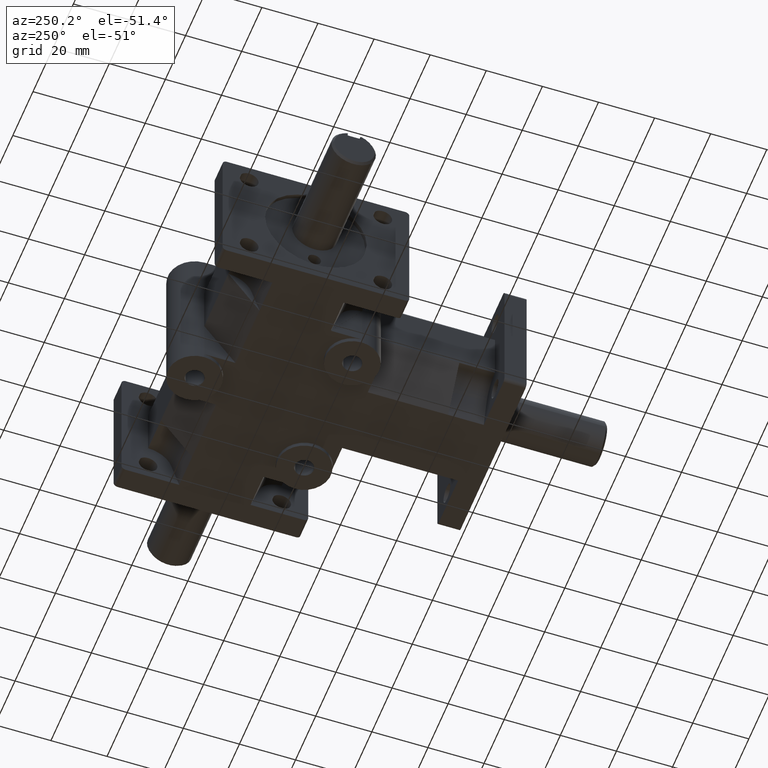
[diagram: clean part render]
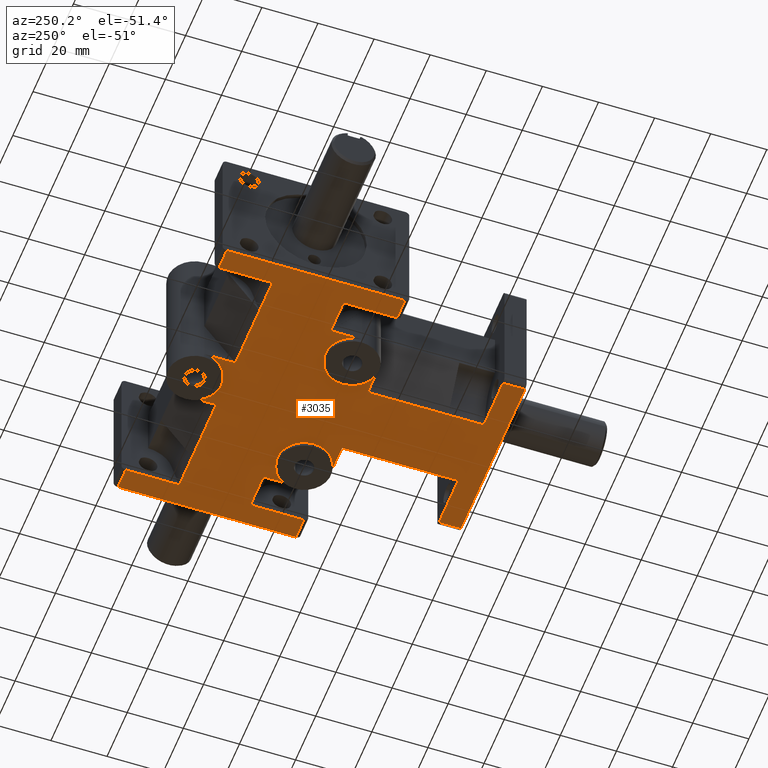
[diagram: same view with one face highlighted and labeled with its STEP entity id]
A machine part, auxiliary view. The second image highlights one B-rep face of the part: STEP entity #3035.
In plain terms, the highlighted planar face has unit normal (0, 0, 1).
Its self-contained STEP definition (entity closure, byte-faithful):
#140=PLANE('',#3334);
#305=FACE_OUTER_BOUND('',#498,.T.);
#498=EDGE_LOOP('',(#2562,#2563,#2564,#2565,#2566,#2567,#2568,#2569,#2570,
#2571,#2572,#2573,#2574,#2575,#2576,#2577,#2578,#2579,#2580,#2581,#2582,
#2583,#2584,#2585,#2586,#2587,#2588,#2589,#2590,#2591,#2592,#2593,#2594,
#2595,#2596,#2597,#2598));
#573=LINE('',#4376,#869);
#576=LINE('',#4388,#872);
#579=LINE('',#4403,#875);
#582=LINE('',#4415,#878);
#587=LINE('',#4439,#883);
#590=LINE('',#4451,#886);
#594=LINE('',#4464,#890);
#609=LINE('',#4504,#905);
#611=LINE('',#4512,#907);
#625=LINE('',#4550,#921);
#627=LINE('',#4558,#923);
#641=LINE('',#4596,#937);
#666=LINE('',#4660,#962);
#667=LINE('',#4663,#963);
#679=LINE('',#4690,#975);
#682=LINE('',#4696,#978);
#692=LINE('',#4720,#988);
#693=LINE('',#4723,#989);
#705=LINE('',#4750,#1001);
#708=LINE('',#4756,#1004);
#718=LINE('',#4780,#1014);
#719=LINE('',#4783,#1015);
#738=LINE('',#4826,#1034);
#788=LINE('',#5019,#1084);
#789=LINE('',#5021,#1085);
#790=LINE('',#5026,#1086);
#791=LINE('',#5027,#1087);
#792=LINE('',#5029,#1088);
#793=LINE('',#5031,#1089);
#794=LINE('',#5034,#1090);
#795=LINE('',#5035,#1091);
#796=LINE('',#5037,#1092);
#797=LINE('',#5040,#1093);
#869=VECTOR('',#3498,1.);
#872=VECTOR('',#3509,1.);
#875=VECTOR('',#3522,1.);
#878=VECTOR('',#3533,1.);
#883=VECTOR('',#3554,1.);
#886=VECTOR('',#3565,1.);
#890=VECTOR('',#3577,1.);
#905=VECTOR('',#3608,1.);
#907=VECTOR('',#3616,1.);
#921=VECTOR('',#3644,1.);
#923=VECTOR('',#3652,1.);
#937=VECTOR('',#3680,1.);
#962=VECTOR('',#3743,1.);
#963=VECTOR('',#3746,1.);
#975=VECTOR('',#3774,1.);
#978=VECTOR('',#3779,1.);
#988=VECTOR('',#3805,1.);
#989=VECTOR('',#3808,1.);
#1001=VECTOR('',#3836,1.);
#1004=VECTOR('',#3841,1.);
#1014=VECTOR('',#3867,1.);
#1015=VECTOR('',#3870,1.);
#1034=VECTOR('',#3913,1.);
#1084=VECTOR('',#4107,1.);
#1085=VECTOR('',#4108,1.);
#1086=VECTOR('',#4113,1.);
#1087=VECTOR('',#4114,1.);
#1088=VECTOR('',#4115,1.);
#1089=VECTOR('',#4116,1.);
#1090=VECTOR('',#4119,1.);
#1091=VECTOR('',#4120,1.);
#1092=VECTOR('',#4121,1.);
#1093=VECTOR('',#4124,1.);
#1268=CIRCLE('',#3335,0.375);
#1269=CIRCLE('',#3336,0.375);
#1270=CIRCLE('',#3337,0.375);
#1271=CIRCLE('',#3338,0.375);
#1311=VERTEX_POINT('',#4373);
#1312=VERTEX_POINT('',#4375);
#1314=VERTEX_POINT('',#4381);
#1317=VERTEX_POINT('',#4386);
#1323=VERTEX_POINT('',#4400);
#1324=VERTEX_POINT('',#4402);
#1326=VERTEX_POINT('',#4408);
#1329=VERTEX_POINT('',#4413);
#1339=VERTEX_POINT('',#4436);
#1340=VERTEX_POINT('',#4438);
#1342=VERTEX_POINT('',#4444);
#1345=VERTEX_POINT('',#4449);
#1350=VERTEX_POINT('',#4463);
#1367=VERTEX_POINT('',#4502);
#1370=VERTEX_POINT('',#4511);
#1387=VERTEX_POINT('',#4548);
#1390=VERTEX_POINT('',#4557);
#1407=VERTEX_POINT('',#4594);
#1426=VERTEX_POINT('',#4651);
#1428=VERTEX_POINT('',#4662);
#1433=VERTEX_POINT('',#4680);
#1437=VERTEX_POINT('',#4694);
#1442=VERTEX_POINT('',#4711);
#1444=VERTEX_POINT('',#4722);
#1449=VERTEX_POINT('',#4740);
#1453=VERTEX_POINT('',#4754);
#1458=VERTEX_POINT('',#4771);
#1460=VERTEX_POINT('',#4782);
#1472=VERTEX_POINT('',#4824);
#1526=VERTEX_POINT('',#5020);
#1527=VERTEX_POINT('',#5022);
#1528=VERTEX_POINT('',#5024);
#1529=VERTEX_POINT('',#5028);
#1530=VERTEX_POINT('',#5030);
#1531=VERTEX_POINT('',#5032);
#1532=VERTEX_POINT('',#5036);
#1533=VERTEX_POINT('',#5038);
#1598=EDGE_CURVE('',#1311,#1312,#573,.T.);
#1604=EDGE_CURVE('',#1317,#1314,#576,.T.);
#1610=EDGE_CURVE('',#1323,#1324,#579,.T.);
#1616=EDGE_CURVE('',#1329,#1326,#582,.T.);
#1626=EDGE_CURVE('',#1339,#1340,#587,.T.);
#1632=EDGE_CURVE('',#1345,#1342,#590,.T.);
#1638=EDGE_CURVE('',#1312,#1350,#594,.T.);
#1659=EDGE_CURVE('',#1367,#1317,#609,.T.);
#1663=EDGE_CURVE('',#1324,#1370,#611,.T.);
#1683=EDGE_CURVE('',#1387,#1329,#625,.T.);
#1687=EDGE_CURVE('',#1340,#1390,#627,.T.);
#1707=EDGE_CURVE('',#1407,#1345,#641,.T.);
#1738=EDGE_CURVE('',#1390,#1426,#666,.T.);
#1739=EDGE_CURVE('',#1426,#1428,#667,.T.);
#1753=EDGE_CURVE('',#1433,#1407,#679,.T.);
#1756=EDGE_CURVE('',#1437,#1433,#682,.T.);
#1768=EDGE_CURVE('',#1350,#1442,#692,.T.);
#1769=EDGE_CURVE('',#1442,#1444,#693,.T.);
#1783=EDGE_CURVE('',#1449,#1367,#705,.T.);
#1786=EDGE_CURVE('',#1453,#1449,#708,.T.);
#1798=EDGE_CURVE('',#1370,#1458,#718,.T.);
#1799=EDGE_CURVE('',#1458,#1460,#719,.T.);
#1821=EDGE_CURVE('',#1472,#1387,#738,.T.);
#1909=EDGE_CURVE('',#1314,#1311,#788,.T.);
#1910=EDGE_CURVE('',#1526,#1453,#789,.T.);
#1911=EDGE_CURVE('',#1526,#1527,#1268,.T.);
#1912=EDGE_CURVE('',#1527,#1528,#1269,.T.);
#1913=EDGE_CURVE('',#1460,#1528,#790,.T.);
#1914=EDGE_CURVE('',#1326,#1323,#791,.T.);
#1915=EDGE_CURVE('',#1529,#1472,#792,.T.);
#1916=EDGE_CURVE('',#1530,#1529,#793,.T.);
#1917=EDGE_CURVE('',#1530,#1531,#1270,.T.);
#1918=EDGE_CURVE('',#1428,#1531,#794,.T.);
#1919=EDGE_CURVE('',#1342,#1339,#795,.T.);
#1920=EDGE_CURVE('',#1532,#1437,#796,.T.);
#1921=EDGE_CURVE('',#1532,#1533,#1271,.T.);
#1922=EDGE_CURVE('',#1444,#1533,#797,.T.);
#2562=ORIENTED_EDGE('',*,*,#1598,.F.);
#2563=ORIENTED_EDGE('',*,*,#1909,.F.);
#2564=ORIENTED_EDGE('',*,*,#1604,.F.);
#2565=ORIENTED_EDGE('',*,*,#1659,.F.);
#2566=ORIENTED_EDGE('',*,*,#1783,.F.);
#2567=ORIENTED_EDGE('',*,*,#1786,.F.);
#2568=ORIENTED_EDGE('',*,*,#1910,.F.);
#2569=ORIENTED_EDGE('',*,*,#1911,.T.);
#2570=ORIENTED_EDGE('',*,*,#1912,.T.);
#2571=ORIENTED_EDGE('',*,*,#1913,.F.);
#2572=ORIENTED_EDGE('',*,*,#1799,.F.);
#2573=ORIENTED_EDGE('',*,*,#1798,.F.);
#2574=ORIENTED_EDGE('',*,*,#1663,.F.);
#2575=ORIENTED_EDGE('',*,*,#1610,.F.);
#2576=ORIENTED_EDGE('',*,*,#1914,.F.);
#2577=ORIENTED_EDGE('',*,*,#1616,.F.);
#2578=ORIENTED_EDGE('',*,*,#1683,.F.);
#2579=ORIENTED_EDGE('',*,*,#1821,.F.);
#2580=ORIENTED_EDGE('',*,*,#1915,.F.);
#2581=ORIENTED_EDGE('',*,*,#1916,.F.);
#2582=ORIENTED_EDGE('',*,*,#1917,.T.);
#2583=ORIENTED_EDGE('',*,*,#1918,.F.);
#2584=ORIENTED_EDGE('',*,*,#1739,.F.);
#2585=ORIENTED_EDGE('',*,*,#1738,.F.);
#2586=ORIENTED_EDGE('',*,*,#1687,.F.);
#2587=ORIENTED_EDGE('',*,*,#1626,.F.);
#2588=ORIENTED_EDGE('',*,*,#1919,.F.);
#2589=ORIENTED_EDGE('',*,*,#1632,.F.);
#2590=ORIENTED_EDGE('',*,*,#1707,.F.);
#2591=ORIENTED_EDGE('',*,*,#1753,.F.);
#2592=ORIENTED_EDGE('',*,*,#1756,.F.);
#2593=ORIENTED_EDGE('',*,*,#1920,.F.);
#2594=ORIENTED_EDGE('',*,*,#1921,.T.);
#2595=ORIENTED_EDGE('',*,*,#1922,.F.);
#2596=ORIENTED_EDGE('',*,*,#1769,.F.);
#2597=ORIENTED_EDGE('',*,*,#1768,.F.);
#2598=ORIENTED_EDGE('',*,*,#1638,.F.);
#3035=ADVANCED_FACE('',(#305),#140,.F.);
#3334=AXIS2_PLACEMENT_3D('',#5018,#4105,#4106);
#3335=AXIS2_PLACEMENT_3D('',#5023,#4109,#4110);
#3336=AXIS2_PLACEMENT_3D('',#5025,#4111,#4112);
#3337=AXIS2_PLACEMENT_3D('',#5033,#4117,#4118);
#3338=AXIS2_PLACEMENT_3D('',#5039,#4122,#4123);
#3498=DIRECTION('',(-1.,0.,0.));
#3509=DIRECTION('',(1.,0.,0.));
#3522=DIRECTION('',(0.,1.,0.));
#3533=DIRECTION('',(0.,-1.,0.));
#3554=DIRECTION('',(1.,0.,0.));
#3565=DIRECTION('',(-1.,0.,0.));
#3577=DIRECTION('',(0.,-1.,0.));
#3608=DIRECTION('',(0.,-1.,0.));
#3616=DIRECTION('',(-1.,0.,0.));
#3644=DIRECTION('',(-1.,0.,0.));
#3652=DIRECTION('',(0.,1.,0.));
#3680=DIRECTION('',(0.,1.,0.));
#3743=DIRECTION('',(1.,0.,0.));
#3746=DIRECTION('',(1.,0.,0.));
#3774=DIRECTION('',(-1.,0.,0.));
#3779=DIRECTION('',(-1.,0.,0.));
#3805=DIRECTION('',(-1.,0.,0.));
#3808=DIRECTION('',(-1.,0.,0.));
#3836=DIRECTION('',(1.,0.,0.));
#3841=DIRECTION('',(1.,0.,0.));
#3867=DIRECTION('',(0.,1.,0.));
#3870=DIRECTION('',(0.,1.,0.));
#3913=DIRECTION('',(0.,-1.,0.));
#4105=DIRECTION('center_axis',(0.,0.,1.));
#4106=DIRECTION('ref_axis',(-1.,0.,0.));
#4107=DIRECTION('',(0.,1.,0.));
#4108=DIRECTION('',(0.,1.,0.));
#4109=DIRECTION('center_axis',(0.,0.,1.));
#4110=DIRECTION('ref_axis',(1.,0.,0.));
#4111=DIRECTION('center_axis',(0.,0.,1.));
#4112=DIRECTION('ref_axis',(1.,0.,0.));
#4113=DIRECTION('',(1.,0.,0.));
#4114=DIRECTION('',(1.,0.,0.));
#4115=DIRECTION('',(0.,-1.,0.));
#4116=DIRECTION('',(1.,0.,0.));
#4117=DIRECTION('center_axis',(0.,0.,1.));
#4118=DIRECTION('ref_axis',(1.,0.,0.));
#4119=DIRECTION('',(0.,-1.,0.));
#4120=DIRECTION('',(0.,-1.,0.));
#4121=DIRECTION('',(0.,-1.,0.));
#4122=DIRECTION('center_axis',(0.,0.,1.));
#4123=DIRECTION('ref_axis',(1.,0.,0.));
#4124=DIRECTION('',(0.,1.,0.));
#4373=CARTESIAN_POINT('',(2.125,4.5,-0.9375));
#4375=CARTESIAN_POINT('',(1.815,4.5,-0.9375));
#4376=CARTESIAN_POINT('',(1.0625,4.5,-0.9375));
#4381=CARTESIAN_POINT('',(2.125,2.,-0.9375));
#4386=CARTESIAN_POINT('',(1.815,2.,-0.9375));
#4388=CARTESIAN_POINT('',(0.9075,2.,-0.9375));
#4400=CARTESIAN_POINT('',(1.25,0.,-0.9375));
#4402=CARTESIAN_POINT('',(1.25,0.31,-0.9375));
#4403=CARTESIAN_POINT('',(1.25,1.20989507691196,-0.9375));
#4408=CARTESIAN_POINT('',(-1.25,0.,-0.9375));
#4413=CARTESIAN_POINT('',(-1.25,0.31,-0.9375));
#4415=CARTESIAN_POINT('',(-1.25,1.36489507691196,-0.9375));
#4436=CARTESIAN_POINT('',(-2.125,2.,-0.9375));
#4438=CARTESIAN_POINT('',(-1.815,2.,-0.9375));
#4439=CARTESIAN_POINT('',(-1.0625,2.,-0.9375));
#4444=CARTESIAN_POINT('',(-2.125,4.5,-0.9375));
#4449=CARTESIAN_POINT('',(-1.815,4.5,-0.9375));
#4451=CARTESIAN_POINT('',(-0.9075,4.5,-0.9375));
#4463=CARTESIAN_POINT('',(1.815,3.75,-0.9375));
#4464=CARTESIAN_POINT('',(1.815,3.48989507691196,-0.9375));
#4502=CARTESIAN_POINT('',(1.815,2.75,-0.9375));
#4504=CARTESIAN_POINT('',(1.815,1.94,-0.9375));
#4511=CARTESIAN_POINT('',(0.5,0.31,-0.9375));
#4512=CARTESIAN_POINT('',(0.655,0.31,-0.9375));
#4548=CARTESIAN_POINT('',(-0.5,0.31,-0.9375));
#4550=CARTESIAN_POINT('',(-1.31,0.31,-0.9375));
#4557=CARTESIAN_POINT('',(-1.815,2.75,-0.9375));
#4558=CARTESIAN_POINT('',(-1.815,2.17989507691196,-0.9375));
#4594=CARTESIAN_POINT('',(-1.815,3.75,-0.9375));
#4596=CARTESIAN_POINT('',(-1.815,4.56,-0.9375));
#4651=CARTESIAN_POINT('',(-1.315,2.75,-0.9375));
#4660=CARTESIAN_POINT('',(-0.45375,2.75,-0.9375));
#4662=CARTESIAN_POINT('',(-1.3125,2.75,-0.9375));
#4663=CARTESIAN_POINT('',(-0.45375,2.75,-0.9375));
#4680=CARTESIAN_POINT('',(-1.315,3.75,-0.9375));
#4690=CARTESIAN_POINT('',(-0.1875,3.75,-0.9375));
#4694=CARTESIAN_POINT('',(-0.375,3.75,-0.9375));
#4696=CARTESIAN_POINT('',(-0.1875,3.75,-0.9375));
#4711=CARTESIAN_POINT('',(1.315,3.75,-0.9375));
#4720=CARTESIAN_POINT('',(-0.1875,3.75,-0.9375));
#4722=CARTESIAN_POINT('',(0.375,3.75,-0.9375));
#4723=CARTESIAN_POINT('',(-0.1875,3.75,-0.9375));
#4740=CARTESIAN_POINT('',(1.315,2.75,-0.9375));
#4750=CARTESIAN_POINT('',(0.328125,2.75,-0.9375));
#4754=CARTESIAN_POINT('',(1.3125,2.75,-0.9375));
#4756=CARTESIAN_POINT('',(0.328125,2.75,-0.9375));
#4771=CARTESIAN_POINT('',(0.5,0.81,-0.9375));
#4780=CARTESIAN_POINT('',(0.5,1.36489507691196,-0.9375));
#4782=CARTESIAN_POINT('',(0.5,1.9375,-0.9375));
#4783=CARTESIAN_POINT('',(0.5,1.36489507691196,-0.9375));
#4824=CARTESIAN_POINT('',(-0.5,0.81,-0.9375));
#4826=CARTESIAN_POINT('',(-0.5,2.17864507691196,-0.9375));
#5018=CARTESIAN_POINT('Origin',(-1.38777878078145E-17,2.41979015382392,
-0.9375));
#5019=CARTESIAN_POINT('',(2.125,4.56,-0.9375));
#5020=CARTESIAN_POINT('',(1.3125,2.3125,-0.9375));
#5021=CARTESIAN_POINT('',(1.3125,2.3125,-0.9375));
#5022=CARTESIAN_POINT('',(0.5625,2.3125,-0.9375));
#5023=CARTESIAN_POINT('Origin',(0.9375,2.3125,-0.9375));
#5024=CARTESIAN_POINT('',(0.9375,1.9375,-0.9375));
#5025=CARTESIAN_POINT('Origin',(0.9375,2.3125,-0.9375));
#5026=CARTESIAN_POINT('',(-0.9375,1.9375,-0.9375));
#5027=CARTESIAN_POINT('',(1.31,0.,-0.9375));
#5028=CARTESIAN_POINT('',(-0.5,1.9375,-0.9375));
#5029=CARTESIAN_POINT('',(-0.5,2.17864507691196,-0.9375));
#5030=CARTESIAN_POINT('',(-0.9375,1.9375,-0.9375));
#5031=CARTESIAN_POINT('',(-0.9375,1.9375,-0.9375));
#5032=CARTESIAN_POINT('',(-1.3125,2.3125,-0.9375));
#5033=CARTESIAN_POINT('Origin',(-0.9375,2.3125,-0.9375));
#5034=CARTESIAN_POINT('',(-1.3125,2.3125,-0.9375));
#5035=CARTESIAN_POINT('',(-2.125,1.94,-0.9375));
#5036=CARTESIAN_POINT('',(-0.375,4.1875,-0.9375));
#5037=CARTESIAN_POINT('',(-0.375,3.25,-0.9375));
#5038=CARTESIAN_POINT('',(0.375,4.1875,-0.9375));
#5039=CARTESIAN_POINT('Origin',(0.,4.1875,-0.9375));
#5040=CARTESIAN_POINT('',(0.375,3.25,-0.9375));